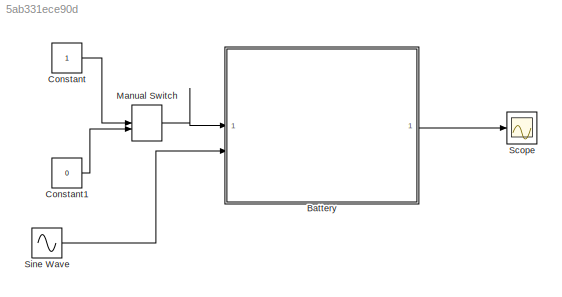
MODEL slx_5ab331ece90d
KIND model
CONFIG AbsTol = auto
CONFIG EnableMultiTasking = off
CONFIG FixedStep = auto
CONFIG MaxStep = auto
CONFIG MinStep = auto
CONFIG RelTol = 1e-3
CONFIG SampleTimeConstraint = Unconstrained
CONFIG SolverName = VariableStepAuto
CONFIG StartTime = 0.0
CONFIG StopTime = inf
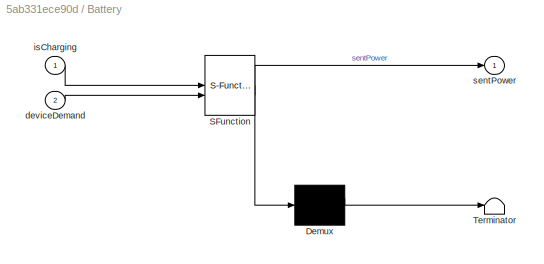
BLOCK [SubSystem] Battery
  ErrorFcn = Stateflow.Translate.translate
  PermitHierarchicalResolution = ExplicitOnly
  SFBlockType = Chart
  TreatAsAtomicUnit = on
BLOCK [Demux] Battery/ Demux 
  Outputs = 1
BLOCK [S-Function] Battery/ SFunction 
  EnableBusSupport = on
  FunctionName = sf_sfun
  PortCounts = [2 2]
  SFcnIsStateOwnerBlock = off
  SFunctionDeploymentMode = off
  Tag = Stateflow S-Function 3
BLOCK [Terminator] Battery/ Terminator 
BLOCK [Inport] Battery/deviceDemand
  Port = 2
BLOCK [Inport] Battery/isCharging
BLOCK [Outport] Battery/sentPower
BLOCK [Constant] Constant
  SampleTime = 0.5
BLOCK [Constant] Constant1
  SampleTime = 0.5
  Value = 0
BLOCK [ManualSwitch] Manual Switch
  CurrentSetting = 0
BLOCK [Scope] Scope
  Floating = off
  NumInputPorts = 1
  ScopeSpecificationString = Simulink.scopes.TimeScopeBlockCfg('CurrentConfiguration', extmgr.ConfigurationSet(extmgr.Configuration('Core','General UI',true),extmgr.Configuration('Core','Source UI',true),extmgr.Configuration('Sources','WiredSimulink',true),extmgr.Configuration('Visuals','Time Domain',true,'SerializedDisplays',{struct('MinYLimReal','2.5','MaxYLimReal','4.5','YLabelReal','','MinYLimMag','2.5','MaxYLimMag','4.5'...<+1480ch>
BLOCK [Sin] Sine Wave
  Amplitude = 2.5
  Bias = 2.5
  Phase = -pi/4
  SampleTime = 0
LINE Battery:1 -> Scope:1
LINE Constant1:1 -> Manual Switch:2
LINE Constant:1 -> Manual Switch:1
LINE Manual Switch:1 -> Battery:1
LINE Sine Wave:1 -> Battery:2
CHART Battery states=7 transitions=14
  STATE_LABEL 'Discharge\n'
  STATE_LABEL 'Powered\n'
  STATE_LABEL '[deviceDemand>maxPower]'
  STATE_LABEL '{sentPower = deviceDemand;}'
  STATE_LABEL '{sentPower = maxPower;}'
  STATE_LABEL '{charge = charge - sentPower; }'
  STATE_LABEL 'Empty\nentry:\nsentPower = 0;'
  STATE_LABEL '[charge<=3]'
  STATE_LABEL 'Powered\n'
  STATE_LABEL '[deviceDemand>maxPower]'
  STATE_LABEL '{sentPower = deviceDemand;}'
  STATE_LABEL '{sentPower = maxPower;}'
  STATE_LABEL '{charge = charge - sentPower; }'
  STATE_LABEL 'Empty\nentry:\nsentPower = 0;'
  STATE_LABEL 'Charge\n\nentry:\nsentPower = 0;\n'
  STATE_LABEL 'FastCharge\nduring:\ncharge = charge +4;'
  STATE_LABEL 'SlowChart\nduring:\ncharge = charge +1'
  STATE_LABEL 'Full'
  STATE_LABEL '[charge > 80]'
  STATE_LABEL '[charge == 100]'
  STATE_LABEL 'FastCharge\nduring:\ncharge = charge +4;'
  STATE_LABEL 'SlowChart\nduring:\ncharge = charge +1'
  STATE_LABEL 'Full'
CHART  states=0 transitions=0
